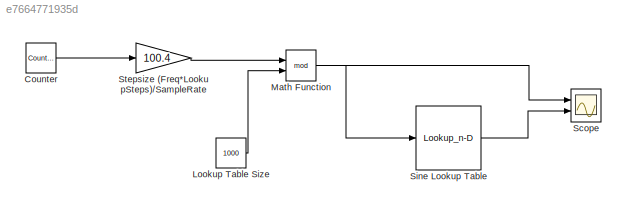
MODEL slx_e7664771935d
KIND model
CONFIG AbsTol = auto
CONFIG EnableMultiTasking = off
CONFIG FixedStep = auto
CONFIG MaxStep = 0.2
CONFIG MinStep = auto
CONFIG RelTol = 1e-3
CONFIG SampleTimeConstraint = Unconstrained
CONFIG Solver = VariableStepAuto
CONFIG SolverName = VariableStepAuto
CONFIG StartTime = 0.0
CONFIG StopTime = 0.01
BLOCK [Reference] Counter  REF=simulink/Sources/Counter
Free-Running
  Ports = [0, 1]
  SourceBlock = simulink/Sources/Counter\nFree-Running
  SourceType = Counter Free-Running
BLOCK [Constant] Lookup Table Size
  OutDataTypeStr = int32
  Value = 1000
BLOCK [Math] Math Function
  Operator = mod
  Ports = [2, 1]
BLOCK [Scope] Scope
  NumInputPorts = 2
  Ports = [2]
  ScopeSpecificationString = Simulink.scopes.TimeScopeBlockCfg('CurrentConfiguration', extmgr.ConfigurationSet(extmgr.Configuration('Core','General UI',true,'FigureColor',[1 1 1]),extmgr.Configuration('Core','Source UI',true),extmgr.Configuration('Sources','WiredSimulink',true),extmgr.Configuration('Visuals','Time Domain',true,'SerializedDisplays',{struct('MinYLimReal','-1.00000','MaxYLimReal','1000','YLabelReal','','MinYLimM...<+2298ch>
BLOCK [Lookup_n-D] Sine Lookup Table
  BreakpointsForDimension1 = [0:7]
  BreakpointsForDimension1FirstPoint = 0
  BreakpointsSpecification = Even spacing
  InternalRulePriority = Speed
  InterpMethod = Flat
  NumberOfTableDimensions = 1
  OutDataTypeStr = int16
  Ports = [1, 1]
  RndMeth = Simplest
  Table = (2^15) * sin(2*pi*[0:1000]/1000)
BLOCK [Gain] Stepsize (Freq*LookupSteps)//SampleRate
  Gain = 100.4
  OutDataTypeStr = int32
  ParamDataTypeStr = Inherit: Inherit via internal rule
  SaturateOnIntegerOverflow = off
LINE Counter:1 -> Stepsize (Freq*LookupSteps)//SampleRate:1
LINE Lookup Table Size:1 -> Math Function:2
NET Math Function:1 -> Scope:1, Sine Lookup Table:1
LINE Sine Lookup Table:1 -> Scope:2
LINE Stepsize (Freq*LookupSteps)//SampleRate:1 -> Math Function:1
note: NET lines group one-source signal fan-out (src -> all destinations, sorted); 1:1 wires keep LINE
